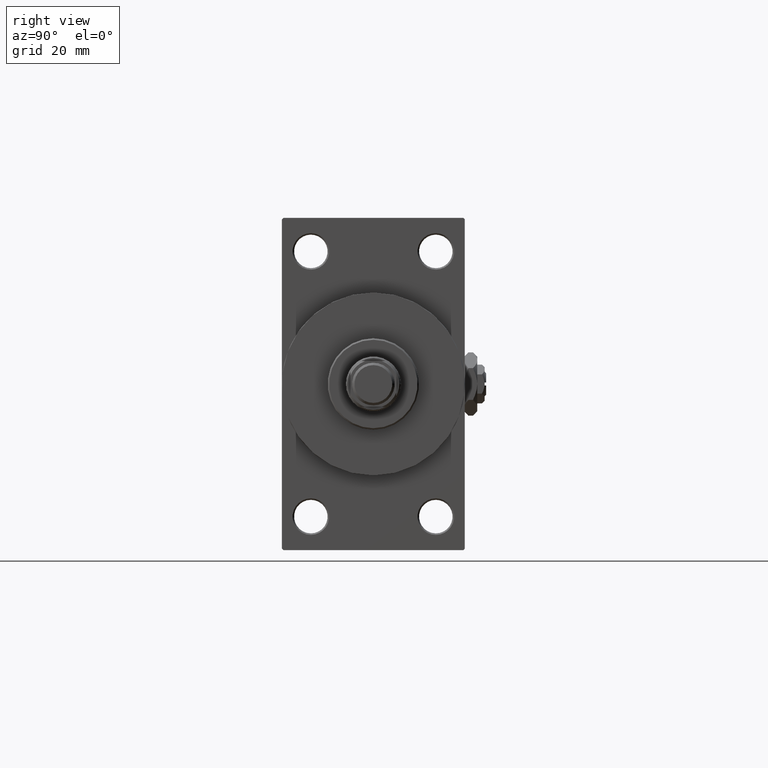
[diagram: clean part render]
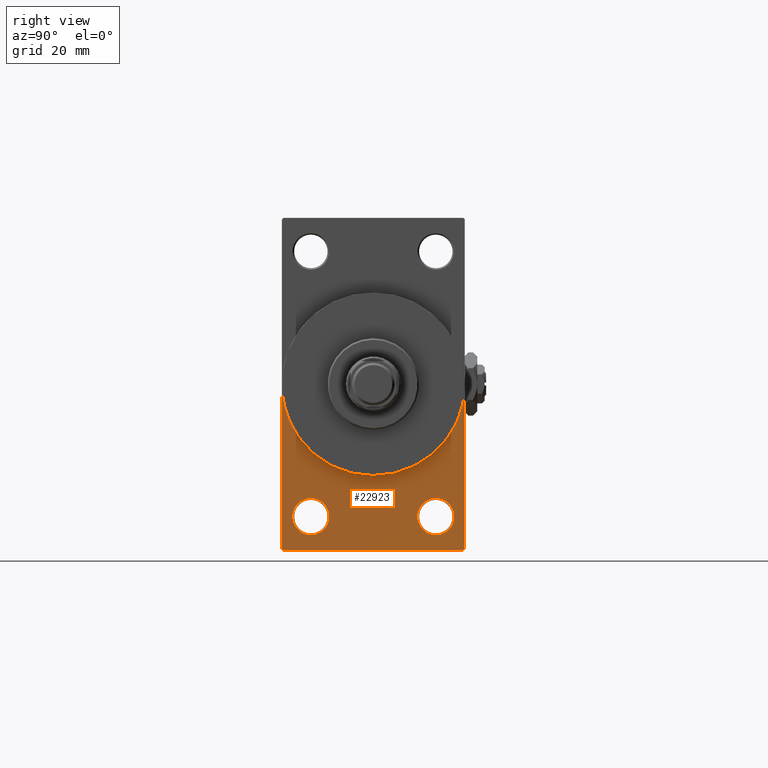
[diagram: same view with one face highlighted and labeled with its STEP entity id]
A machine part, right view. The second image highlights one B-rep face of the part: STEP entity #22923.
In plain terms, the highlighted planar face has unit normal (-1, 0, 0).
Its self-contained STEP definition (entity closure, byte-faithful):
#1285 = DIRECTION ( 'NONE',  ( 0.000000000000000000, 0.000000000000000000, -1.000000000000000000 ) ) ;
#3338 = CARTESIAN_POINT ( 'NONE',  ( 138.0000000000000000, 30.00000000000000000, 0.000000000000000000 ) ) ;
#3594 = DIRECTION ( 'NONE',  ( 1.000000000000000000, 0.000000000000000000, 0.000000000000000000 ) ) ;
#3985 = EDGE_CURVE ( 'NONE', #6141, #11756, #34983, .T. ) ;
#4044 = CARTESIAN_POINT ( 'NONE',  ( 138.0000000000000000, 29.99999999999999645, 54.49999999999999289 ) ) ;
#4792 = EDGE_LOOP ( 'NONE', ( #21182, #28035 ) ) ;
#4916 = ORIENTED_EDGE ( 'NONE', *, *, #8788, .T. ) ;
#4924 = ORIENTED_EDGE ( 'NONE', *, *, #39240, .T. ) ;
#4967 = DIRECTION ( 'NONE',  ( 0.000000000000000000, 0.7071067811865352493, -0.7071067811865597852 ) ) ;
#5641 = EDGE_CURVE ( 'NONE', #9752, #11187, #35022, .T. ) ;
#6141 = VERTEX_POINT ( 'NONE', #19805 ) ;
#7109 = VERTEX_POINT ( 'NONE', #36619 ) ;
#7811 = FACE_BOUND ( 'NONE', #27235, .T. ) ;
#8257 = DIRECTION ( 'NONE',  ( -0.000000000000000000, 0.7071067811865474617, 0.7071067811865474617 ) ) ;
#8757 = CARTESIAN_POINT ( 'NONE',  ( 138.0000000000000000, -29.50000000000000355, -54.50000000000000000 ) ) ;
#8788 = EDGE_CURVE ( 'NONE', #13584, #35622, #26883, .T. ) ;
#8842 = EDGE_CURVE ( 'NONE', #10122, #26494, #43225, .T. ) ;
#8988 = DIRECTION ( 'NONE',  ( -1.000000000000000000, 0.000000000000000000, -0.000000000000000000 ) ) ;
#9142 = CARTESIAN_POINT ( 'NONE',  ( 138.0000000000000000, -29.50000000000000355, -54.50000000000000000 ) ) ;
#9237 = DIRECTION ( 'NONE',  ( 0.000000000000000000, 0.000000000000000000, 1.000000000000000000 ) ) ;
#9483 = CIRCLE ( 'NONE', #14288, 6.000000000000088818 ) ;
#9633 = VECTOR ( 'NONE', #31253, 1000.000000000000000 ) ;
#9752 = VERTEX_POINT ( 'NONE', #47958 ) ;
#10122 = VERTEX_POINT ( 'NONE', #46356 ) ;
#10483 = CARTESIAN_POINT ( 'NONE',  ( 138.0000000000000000, 20.50000000000000000, -43.50000000000000000 ) ) ;
#11187 = VERTEX_POINT ( 'NONE', #15113 ) ;
#11652 = LINE ( 'NONE', #12158, #17079 ) ;
#11733 = CIRCLE ( 'NONE', #49435, 30.00000000000000000 ) ;
#11756 = VERTEX_POINT ( 'NONE', #3338 ) ;
#12158 = CARTESIAN_POINT ( 'NONE',  ( 138.0000000000000000, -30.00000000000000000, 54.50000000000000000 ) ) ;
#13584 = VERTEX_POINT ( 'NONE', #21460 ) ;
#14276 = EDGE_CURVE ( 'NONE', #13584, #26494, #35464, .T. ) ;
#14288 = AXIS2_PLACEMENT_3D ( 'NONE', #25691, #17628, #48055 ) ;
#14463 = ORIENTED_EDGE ( 'NONE', *, *, #42975, .T. ) ;
#15113 = CARTESIAN_POINT ( 'NONE',  ( 138.0000000000000000, -20.50000000000000000, -37.49999999999990763 ) ) ;
#15623 = CIRCLE ( 'NONE', #31705, 6.000000000000088818 ) ;
#15954 = DIRECTION ( 'NONE',  ( 0.000000000000000000, 0.000000000000000000, -1.000000000000000000 ) ) ;
#17079 = VECTOR ( 'NONE', #1285, 1000.000000000000000 ) ;
#17628 = DIRECTION ( 'NONE',  ( -1.000000000000000000, 0.000000000000000000, -0.000000000000000000 ) ) ;
#18260 = EDGE_CURVE ( 'NONE', #11756, #35622, #23184, .T. ) ;
#18398 = ORIENTED_EDGE ( 'NONE', *, *, #14276, .F. ) ;
#19376 = DIRECTION ( 'NONE',  ( -0.000000000000000000, 0.000000000000000000, 1.000000000000000000 ) ) ;
#19805 = CARTESIAN_POINT ( 'NONE',  ( 138.0000000000000000, 3.673940397442059178E-15, -30.00000000000000000 ) ) ;
#20654 = CARTESIAN_POINT ( 'NONE',  ( 138.0000000000000000, 29.99999999999999645, -53.99999999999999289 ) ) ;
#21182 = ORIENTED_EDGE ( 'NONE', *, *, #5641, .T. ) ;
#21460 = CARTESIAN_POINT ( 'NONE',  ( 138.0000000000000000, 29.49999999999999645, -54.49999999999999289 ) ) ;
#22923 = ADVANCED_FACE ( 'NONE', ( #42278, #7811, #23160 ), #38503, .F. ) ;
#22991 = CARTESIAN_POINT ( 'NONE',  ( 138.0000000000000000, 0.000000000000000000, 0.000000000000000000 ) ) ;
#23160 = FACE_OUTER_BOUND ( 'NONE', #43055, .T. ) ;
#23184 = LINE ( 'NONE', #4044, #9633 ) ;
#23660 = DIRECTION ( 'NONE',  ( -1.000000000000000000, 0.000000000000000000, -0.000000000000000000 ) ) ;
#24701 = VECTOR ( 'NONE', #4967, 1000.000000000000000 ) ;
#25051 = ORIENTED_EDGE ( 'NONE', *, *, #18260, .F. ) ;
#25597 = DIRECTION ( 'NONE',  ( -1.000000000000000000, 0.000000000000000000, -0.000000000000000000 ) ) ;
#25691 = CARTESIAN_POINT ( 'NONE',  ( 138.0000000000000000, -20.50000000000000000, -43.50000000000000000 ) ) ;
#26494 = VERTEX_POINT ( 'NONE', #9142 ) ;
#26883 = LINE ( 'NONE', #42728, #27127 ) ;
#27019 = AXIS2_PLACEMENT_3D ( 'NONE', #28697, #44019, #47534 ) ;
#27127 = VECTOR ( 'NONE', #8257, 1000.000000000000114 ) ;
#27235 = EDGE_LOOP ( 'NONE', ( #14463, #27893 ) ) ;
#27893 = ORIENTED_EDGE ( 'NONE', *, *, #32074, .T. ) ;
#28035 = ORIENTED_EDGE ( 'NONE', *, *, #49670, .T. ) ;
#28489 = AXIS2_PLACEMENT_3D ( 'NONE', #43698, #8988, #9237 ) ;
#28697 = CARTESIAN_POINT ( 'NONE',  ( 138.0000000000000000, -20.50000000000000000, -43.50000000000000000 ) ) ;
#29297 = VERTEX_POINT ( 'NONE', #48885 ) ;
#31253 = DIRECTION ( 'NONE',  ( 0.000000000000000000, 0.000000000000000000, -1.000000000000000000 ) ) ;
#31656 = CARTESIAN_POINT ( 'NONE',  ( 138.0000000000000000, 0.000000000000000000, 0.000000000000000000 ) ) ;
#31705 = AXIS2_PLACEMENT_3D ( 'NONE', #10483, #25597, #44438 ) ;
#31807 = AXIS2_PLACEMENT_3D ( 'NONE', #22991, #3594, #15954 ) ;
#32074 = EDGE_CURVE ( 'NONE', #37487, #7109, #15623, .T. ) ;
#32128 = DIRECTION ( 'NONE',  ( 0.000000000000000000, 0.000000000000000000, -1.000000000000000000 ) ) ;
#34983 = CIRCLE ( 'NONE', #31807, 30.00000000000000000 ) ;
#35022 = CIRCLE ( 'NONE', #27019, 6.000000000000088818 ) ;
#35464 = LINE ( 'NONE', #39966, #40941 ) ;
#35622 = VERTEX_POINT ( 'NONE', #20654 ) ;
#35741 = CIRCLE ( 'NONE', #28489, 6.000000000000088818 ) ;
#36619 = CARTESIAN_POINT ( 'NONE',  ( 138.0000000000000000, 20.50000000000000000, -49.50000000000008527 ) ) ;
#37487 = VERTEX_POINT ( 'NONE', #42403 ) ;
#38367 = ORIENTED_EDGE ( 'NONE', *, *, #3985, .F. ) ;
#38503 = PLANE ( 'NONE',  #39547 ) ;
#38843 = ORIENTED_EDGE ( 'NONE', *, *, #44883, .F. ) ;
#39240 = EDGE_CURVE ( 'NONE', #29297, #10122, #11652, .T. ) ;
#39547 = AXIS2_PLACEMENT_3D ( 'NONE', #42778, #23660, #19376 ) ;
#39966 = CARTESIAN_POINT ( 'NONE',  ( 138.0000000000000000, 29.99999999999999645, -54.49999999999999289 ) ) ;
#40941 = VECTOR ( 'NONE', #43483, 1000.000000000000000 ) ;
#42278 = FACE_BOUND ( 'NONE', #4792, .T. ) ;
#42403 = CARTESIAN_POINT ( 'NONE',  ( 138.0000000000000000, 20.50000000000000000, -37.49999999999990763 ) ) ;
#42728 = CARTESIAN_POINT ( 'NONE',  ( 138.0000000000000000, 29.99999999999999645, -53.99999999999999289 ) ) ;
#42778 = CARTESIAN_POINT ( 'NONE',  ( 138.0000000000000000, 0.000000000000000000, 0.000000000000000000 ) ) ;
#42975 = EDGE_CURVE ( 'NONE', #7109, #37487, #35741, .T. ) ;
#43055 = EDGE_LOOP ( 'NONE', ( #4924, #45936, #18398, #4916, #25051, #38367, #38843 ) ) ;
#43225 = LINE ( 'NONE', #8757, #24701 ) ;
#43483 = DIRECTION ( 'NONE',  ( 0.000000000000000000, -1.000000000000000000, -1.156482317317871478E-16 ) ) ;
#43698 = CARTESIAN_POINT ( 'NONE',  ( 138.0000000000000000, 20.50000000000000000, -43.50000000000000000 ) ) ;
#44019 = DIRECTION ( 'NONE',  ( -1.000000000000000000, 0.000000000000000000, -0.000000000000000000 ) ) ;
#44438 = DIRECTION ( 'NONE',  ( 0.000000000000000000, 0.000000000000000000, 1.000000000000000000 ) ) ;
#44883 = EDGE_CURVE ( 'NONE', #29297, #6141, #11733, .T. ) ;
#45936 = ORIENTED_EDGE ( 'NONE', *, *, #8842, .T. ) ;
#46356 = CARTESIAN_POINT ( 'NONE',  ( 138.0000000000000000, -30.00000000000000000, -53.99999999999998579 ) ) ;
#46971 = DIRECTION ( 'NONE',  ( 1.000000000000000000, 0.000000000000000000, 0.000000000000000000 ) ) ;
#47534 = DIRECTION ( 'NONE',  ( 0.000000000000000000, 0.000000000000000000, 1.000000000000000000 ) ) ;
#47958 = CARTESIAN_POINT ( 'NONE',  ( 138.0000000000000000, -20.50000000000000000, -49.50000000000008527 ) ) ;
#48055 = DIRECTION ( 'NONE',  ( 0.000000000000000000, 0.000000000000000000, 1.000000000000000000 ) ) ;
#48885 = CARTESIAN_POINT ( 'NONE',  ( 138.0000000000000000, -30.00000000000000000, 0.000000000000000000 ) ) ;
#49435 = AXIS2_PLACEMENT_3D ( 'NONE', #31656, #46971, #32128 ) ;
#49670 = EDGE_CURVE ( 'NONE', #11187, #9752, #9483, .T. ) ;